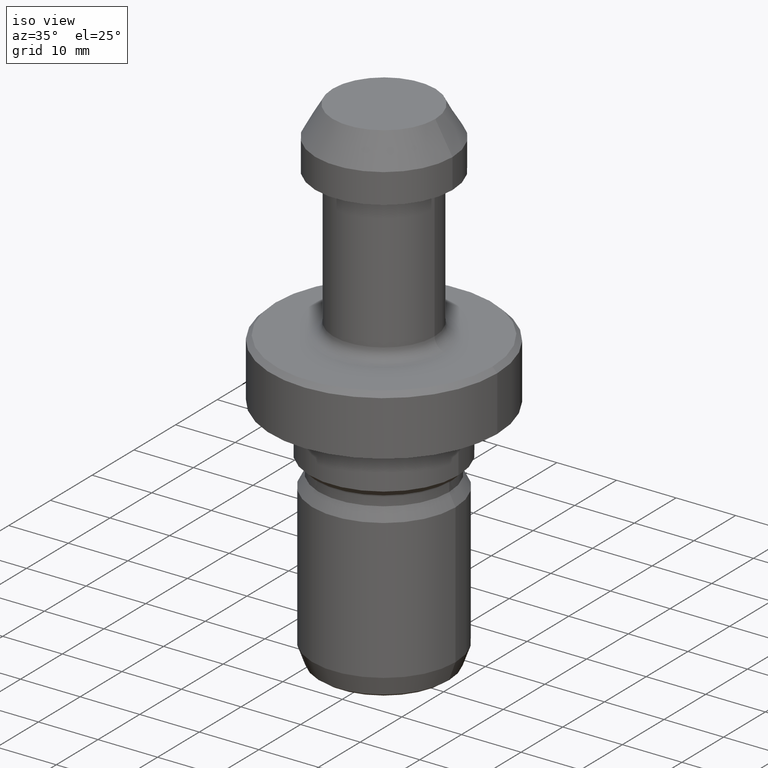
[diagram: clean part render]
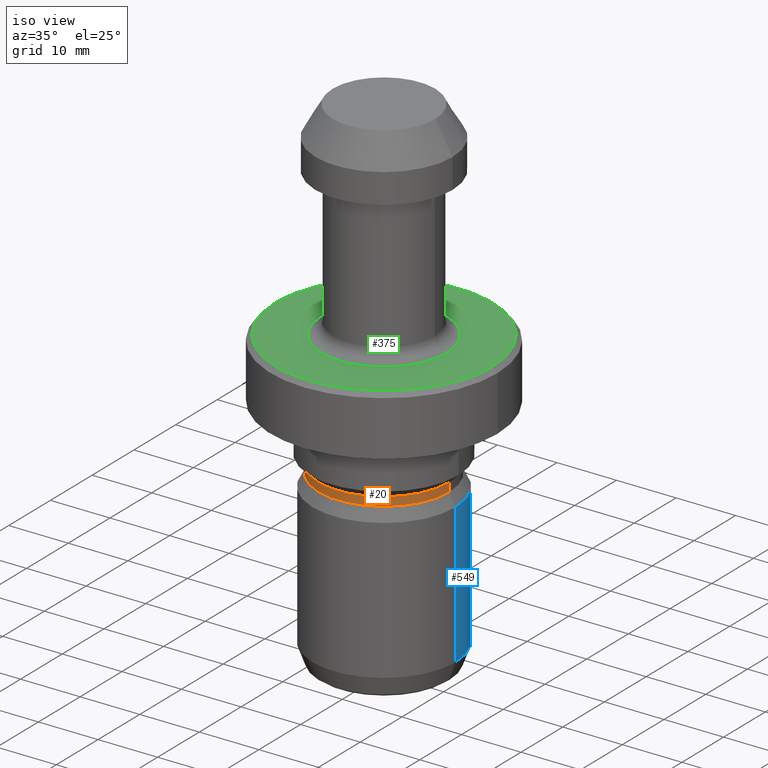
[diagram: same view with three faces highlighted in distinct colors, each labeled with its STEP entity id]
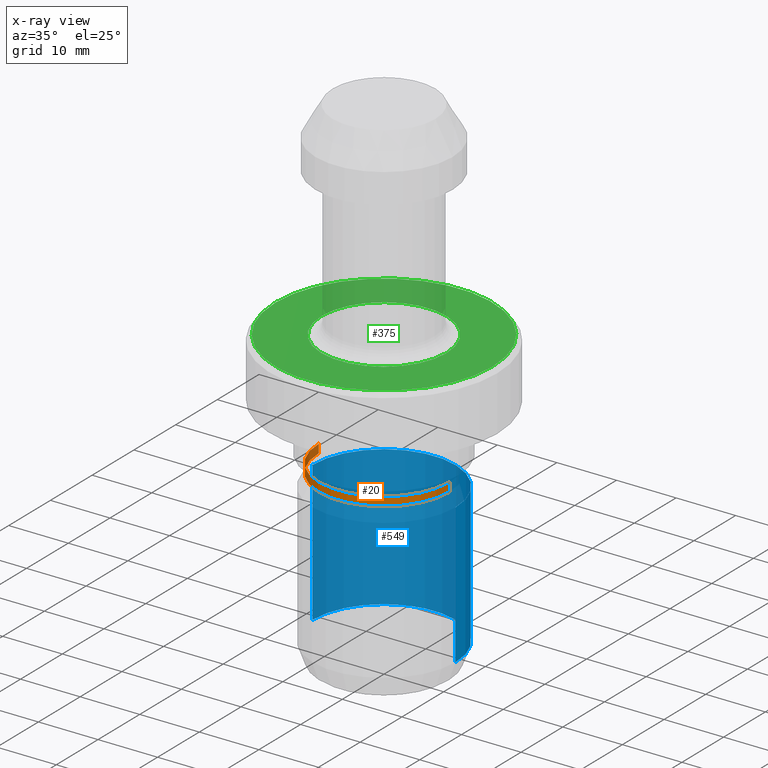
[diagram: x-ray of the same camera — body ghosted, the three highlighted faces saturated]
A machine part, iso view with three faces highlighted in distinct colors.
The next image is the same camera in x-ray (body ghosted, the three faces saturated) — at least one of them is partly hidden behind the body in this view.
Their STEP definitions:

[orange] entity #20 — the highlighted cylindrical surface (partial cylindrical patch) has radius 10.95 mm, axis along (-0, -0, 1).
#20 = ADVANCED_FACE ( 'NONE', ( #195 ), #1088, .T. ) ;
#23 = AXIS2_PLACEMENT_3D ( 'NONE', #1063, #147, #763 ) ;
#34 = CARTESIAN_POINT ( 'NONE',  ( -10.95000000000000100, 0.0000000000000000000, -55.94999999999998900 ) ) ;
#36 = VERTEX_POINT ( 'NONE', #592 ) ;
#84 = CARTESIAN_POINT ( 'NONE',  ( 10.94999999999999800, 0.0000000000000000000, -54.49999999999999300 ) ) ;
#110 = DIRECTION ( 'NONE',  ( -0.0000000000000000000, -0.0000000000000000000, 1.000000000000000000 ) ) ;
#147 = DIRECTION ( 'NONE',  ( -0.0000000000000000000, -0.0000000000000000000, 1.000000000000000000 ) ) ;
#157 = LINE ( 'NONE', #774, #833 ) ;
#195 = FACE_OUTER_BOUND ( 'NONE', #1106, .T. ) ;
#206 = AXIS2_PLACEMENT_3D ( 'NONE', #789, #260, #878 ) ;
#226 = DIRECTION ( 'NONE',  ( -0.0000000000000000000, -0.0000000000000000000, 1.000000000000000000 ) ) ;
#233 = ORIENTED_EDGE ( 'NONE', *, *, #810, .T. ) ;
#260 = DIRECTION ( 'NONE',  ( -0.0000000000000000000, -0.0000000000000000000, 1.000000000000000000 ) ) ;
#439 = EDGE_CURVE ( 'NONE', #754, #659, #1103, .T. ) ;
#442 = ORIENTED_EDGE ( 'NONE', *, *, #794, .F. ) ;
#477 = ORIENTED_EDGE ( 'NONE', *, *, #1012, .T. ) ;
#505 = CIRCLE ( 'NONE', #206, 10.95000000000000100 ) ;
#518 = CARTESIAN_POINT ( 'NONE',  ( -10.94999999999999900, 1.340988245066351700E-015, 0.0000000000000000000 ) ) ;
#522 = DIRECTION ( 'NONE',  ( -0.0000000000000000000, -0.0000000000000000000, 1.000000000000000000 ) ) ;
#592 = CARTESIAN_POINT ( 'NONE',  ( 10.95000000000000100, 1.405282202021587800E-015, -55.94999999999998900 ) ) ;
#659 = VERTEX_POINT ( 'NONE', #84 ) ;
#670 = VERTEX_POINT ( 'NONE', #34 ) ;
#749 = ORIENTED_EDGE ( 'NONE', *, *, #439, .F. ) ;
#754 = VERTEX_POINT ( 'NONE', #1000 ) ;
#756 = CARTESIAN_POINT ( 'NONE',  ( 0.0000000000000000000, 0.0000000000000000000, -54.49999999999999300 ) ) ;
#758 = VECTOR ( 'NONE', #522, 1000.000000000000000 ) ;
#763 = DIRECTION ( 'NONE',  ( 1.000000000000000000, 0.0000000000000000000, 0.0000000000000000000 ) ) ;
#774 = CARTESIAN_POINT ( 'NONE',  ( 10.94999999999999900, 0.0000000000000000000, 0.0000000000000000000 ) ) ;
#789 = CARTESIAN_POINT ( 'NONE',  ( 0.0000000000000000000, 0.0000000000000000000, -55.94999999999998900 ) ) ;
#794 = EDGE_CURVE ( 'NONE', #670, #754, #1003, .T. ) ;
#810 = EDGE_CURVE ( 'NONE', #670, #36, #505, .T. ) ;
#833 = VECTOR ( 'NONE', #110, 1000.000000000000000 ) ;
#846 = AXIS2_PLACEMENT_3D ( 'NONE', #756, #226, #848 ) ;
#848 = DIRECTION ( 'NONE',  ( 1.000000000000000000, 0.0000000000000000000, 0.0000000000000000000 ) ) ;
#878 = DIRECTION ( 'NONE',  ( 1.000000000000000000, 0.0000000000000000000, 0.0000000000000000000 ) ) ;
#1000 = CARTESIAN_POINT ( 'NONE',  ( -10.94999999999999800, 1.340988245066351700E-015, -54.49999999999999300 ) ) ;
#1003 = LINE ( 'NONE', #518, #758 ) ;
#1012 = EDGE_CURVE ( 'NONE', #36, #659, #157, .T. ) ;
#1063 = CARTESIAN_POINT ( 'NONE',  ( 0.0000000000000000000, 0.0000000000000000000, 0.0000000000000000000 ) ) ;
#1088 = CYLINDRICAL_SURFACE ( 'NONE', #23, 10.94999999999999900 ) ;
#1103 = CIRCLE ( 'NONE', #846, 10.94999999999999800 ) ;
#1106 = EDGE_LOOP ( 'NONE', ( #442, #233, #477, #749 ) ) ;

[blue] entity #549 — the highlighted cylindrical surface (partial cylindrical patch) has radius 12 mm, axis along (-0, -0, 1).
#51 = CARTESIAN_POINT ( 'NONE',  ( 12.00000000000000000, 0.0000000000000000000, 0.0000000000000000000 ) ) ;
#99 = CYLINDRICAL_SURFACE ( 'NONE', #242, 12.00000000000000000 ) ;
#132 = ORIENTED_EDGE ( 'NONE', *, *, #438, .F. ) ;
#136 = CARTESIAN_POINT ( 'NONE',  ( 12.00000000000000000, 0.0000000000000000000, -57.99999999999997900 ) ) ;
#152 = AXIS2_PLACEMENT_3D ( 'NONE', #416, #1037, #510 ) ;
#155 = DIRECTION ( 'NONE',  ( 1.000000000000000000, 0.0000000000000000000, 0.0000000000000000000 ) ) ;
#179 = AXIS2_PLACEMENT_3D ( 'NONE', #404, #1024, #492 ) ;
#188 = VERTEX_POINT ( 'NONE', #333 ) ;
#225 = ORIENTED_EDGE ( 'NONE', *, *, #961, .T. ) ;
#242 = AXIS2_PLACEMENT_3D ( 'NONE', #562, #640, #155 ) ;
#291 = CIRCLE ( 'NONE', #179, 12.00000000000000000 ) ;
#333 = CARTESIAN_POINT ( 'NONE',  ( -12.00000000000000000, 1.469576158976823900E-015, -81.50000000000000000 ) ) ;
#349 = LINE ( 'NONE', #464, #815 ) ;
#377 = DIRECTION ( 'NONE',  ( -0.0000000000000000000, -0.0000000000000000000, 1.000000000000000000 ) ) ;
#382 = CARTESIAN_POINT ( 'NONE',  ( 12.00000000000000000, 0.0000000000000000000, -81.50000000000000000 ) ) ;
#395 = EDGE_LOOP ( 'NONE', ( #225, #973, #1093, #132 ) ) ;
#404 = CARTESIAN_POINT ( 'NONE',  ( 0.0000000000000000000, 0.0000000000000000000, -57.99999999999997900 ) ) ;
#416 = CARTESIAN_POINT ( 'NONE',  ( 0.0000000000000000000, 0.0000000000000000000, -81.50000000000000000 ) ) ;
#433 = VERTEX_POINT ( 'NONE', #136 ) ;
#438 = EDGE_CURVE ( 'NONE', #1049, #433, #871, .T. ) ;
#464 = CARTESIAN_POINT ( 'NONE',  ( -12.00000000000000000, 1.469576158976823900E-015, 0.0000000000000000000 ) ) ;
#492 = DIRECTION ( 'NONE',  ( 1.000000000000000000, 0.0000000000000000000, 0.0000000000000000000 ) ) ;
#510 = DIRECTION ( 'NONE',  ( 1.000000000000000000, 0.0000000000000000000, 0.0000000000000000000 ) ) ;
#549 = ADVANCED_FACE ( 'NONE', ( #1044 ), #99, .T. ) ;
#562 = CARTESIAN_POINT ( 'NONE',  ( 0.0000000000000000000, 0.0000000000000000000, 0.0000000000000000000 ) ) ;
#578 = CARTESIAN_POINT ( 'NONE',  ( -12.00000000000000000, 1.469576158976823900E-015, -57.99999999999997900 ) ) ;
#640 = DIRECTION ( 'NONE',  ( -0.0000000000000000000, -0.0000000000000000000, 1.000000000000000000 ) ) ;
#772 = EDGE_CURVE ( 'NONE', #188, #883, #349, .T. ) ;
#815 = VECTOR ( 'NONE', #377, 1000.000000000000000 ) ;
#820 = EDGE_CURVE ( 'NONE', #433, #883, #291, .T. ) ;
#871 = LINE ( 'NONE', #51, #1138 ) ;
#883 = VERTEX_POINT ( 'NONE', #578 ) ;
#917 = CIRCLE ( 'NONE', #152, 12.00000000000000000 ) ;
#961 = EDGE_CURVE ( 'NONE', #1049, #188, #917, .T. ) ;
#973 = ORIENTED_EDGE ( 'NONE', *, *, #772, .T. ) ;
#1024 = DIRECTION ( 'NONE',  ( -0.0000000000000000000, -0.0000000000000000000, 1.000000000000000000 ) ) ;
#1037 = DIRECTION ( 'NONE',  ( -0.0000000000000000000, -0.0000000000000000000, 1.000000000000000000 ) ) ;
#1044 = FACE_OUTER_BOUND ( 'NONE', #395, .T. ) ;
#1049 = VERTEX_POINT ( 'NONE', #382 ) ;
#1093 = ORIENTED_EDGE ( 'NONE', *, *, #820, .F. ) ;
#1114 = DIRECTION ( 'NONE',  ( -0.0000000000000000000, -0.0000000000000000000, 1.000000000000000000 ) ) ;
#1138 = VECTOR ( 'NONE', #1114, 1000.000000000000000 ) ;

[green] entity #375 — the highlighted planar face has unit normal (0, 0, -1).
#30 = EDGE_CURVE ( 'NONE', #318, #96, #177, .T. ) ;
#96 = VERTEX_POINT ( 'NONE', #593 ) ;
#151 = CARTESIAN_POINT ( 'NONE',  ( 0.0000000000000000000, 0.0000000000000000000, -34.99999999999999300 ) ) ;
#177 = CIRCLE ( 'NONE', #293, 10.50000000000000000 ) ;
#192 = AXIS2_PLACEMENT_3D ( 'NONE', #489, #1107, #577 ) ;
#246 = DIRECTION ( 'NONE',  ( 1.000000000000000000, 0.0000000000000000000, 0.0000000000000000000 ) ) ;
#293 = AXIS2_PLACEMENT_3D ( 'NONE', #151, #768, #246 ) ;
#311 = CARTESIAN_POINT ( 'NONE',  ( 0.0000000000000000000, 0.0000000000000000000, -34.99999999999999300 ) ) ;
#318 = VERTEX_POINT ( 'NONE', #1051 ) ;
#375 = ADVANCED_FACE ( 'NONE', ( #890, #451 ), #713, .F. ) ;
#381 = EDGE_CURVE ( 'NONE', #745, #1143, #920, .T. ) ;
#384 = CARTESIAN_POINT ( 'NONE',  ( 0.0000000000000000000, 0.0000000000000000000, -34.99999999999999300 ) ) ;
#403 = DIRECTION ( 'NONE',  ( 1.000000000000000000, 0.0000000000000000000, 0.0000000000000000000 ) ) ;
#451 = FACE_OUTER_BOUND ( 'NONE', #609, .T. ) ;
#473 = DIRECTION ( 'NONE',  ( 1.000000000000000000, 0.0000000000000000000, 0.0000000000000000000 ) ) ;
#489 = CARTESIAN_POINT ( 'NONE',  ( 0.0000000000000000000, 0.0000000000000000000, -34.99999999999999300 ) ) ;
#532 = ORIENTED_EDGE ( 'NONE', *, *, #30, .F. ) ;
#536 = EDGE_CURVE ( 'NONE', #96, #318, #830, .T. ) ;
#553 = DIRECTION ( 'NONE',  ( -1.000000000000000000, 0.0000000000000000000, -0.0000000000000000000 ) ) ;
#577 = DIRECTION ( 'NONE',  ( 1.000000000000000000, 0.0000000000000000000, 0.0000000000000000000 ) ) ;
#593 = CARTESIAN_POINT ( 'NONE',  ( -10.50000000000000000, 1.285879139104720800E-015, -34.99999999999999300 ) ) ;
#594 = EDGE_LOOP ( 'NONE', ( #532, #643 ) ) ;
#609 = EDGE_LOOP ( 'NONE', ( #838, #1120 ) ) ;
#643 = ORIENTED_EDGE ( 'NONE', *, *, #536, .F. ) ;
#649 = AXIS2_PLACEMENT_3D ( 'NONE', #384, #1008, #473 ) ;
#713 = PLANE ( 'NONE',  #877 ) ;
#738 = CARTESIAN_POINT ( 'NONE',  ( -18.19999999999998500, 0.0000000000000000000, -34.99999999999999300 ) ) ;
#745 = VERTEX_POINT ( 'NONE', #990 ) ;
#768 = DIRECTION ( 'NONE',  ( -0.0000000000000000000, -0.0000000000000000000, 1.000000000000000000 ) ) ;
#813 = EDGE_CURVE ( 'NONE', #1143, #745, #944, .T. ) ;
#830 = CIRCLE ( 'NONE', #649, 10.50000000000000000 ) ;
#838 = ORIENTED_EDGE ( 'NONE', *, *, #813, .T. ) ;
#877 = AXIS2_PLACEMENT_3D ( 'NONE', #901, #1081, #553 ) ;
#881 = AXIS2_PLACEMENT_3D ( 'NONE', #311, #932, #403 ) ;
#890 = FACE_BOUND ( 'NONE', #594, .T. ) ;
#901 = CARTESIAN_POINT ( 'NONE',  ( 0.0000000000000000000, 10.50000000000000000, -34.99999999999999300 ) ) ;
#920 = CIRCLE ( 'NONE', #881, 18.19999999999998500 ) ;
#932 = DIRECTION ( 'NONE',  ( -0.0000000000000000000, -0.0000000000000000000, 1.000000000000000000 ) ) ;
#944 = CIRCLE ( 'NONE', #192, 18.19999999999998500 ) ;
#990 = CARTESIAN_POINT ( 'NONE',  ( 18.19999999999998500, 2.277843046414076000E-015, -34.99999999999999300 ) ) ;
#1008 = DIRECTION ( 'NONE',  ( -0.0000000000000000000, -0.0000000000000000000, 1.000000000000000000 ) ) ;
#1051 = CARTESIAN_POINT ( 'NONE',  ( 10.50000000000000000, 0.0000000000000000000, -34.99999999999999300 ) ) ;
#1081 = DIRECTION ( 'NONE',  ( 0.0000000000000000000, 0.0000000000000000000, -1.000000000000000000 ) ) ;
#1107 = DIRECTION ( 'NONE',  ( -0.0000000000000000000, -0.0000000000000000000, 1.000000000000000000 ) ) ;
#1120 = ORIENTED_EDGE ( 'NONE', *, *, #381, .T. ) ;
#1143 = VERTEX_POINT ( 'NONE', #738 ) ;